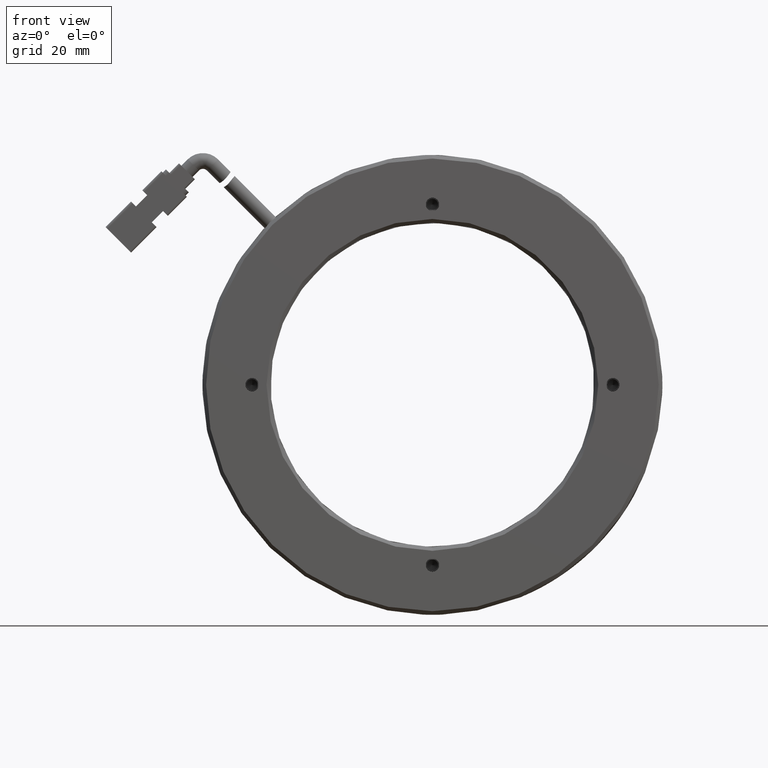
[diagram: clean part render]
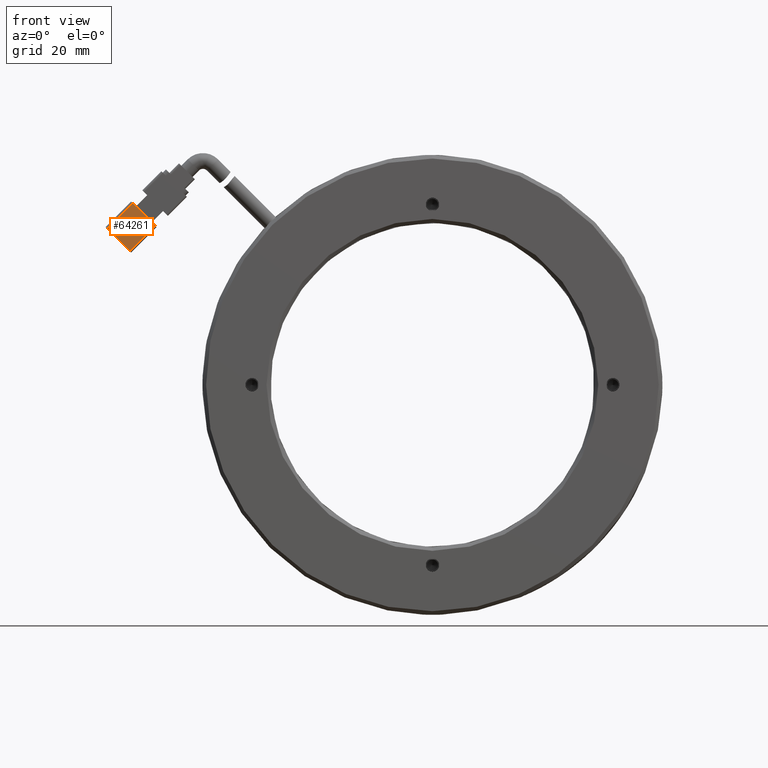
[diagram: same view with one face highlighted and labeled with its STEP entity id]
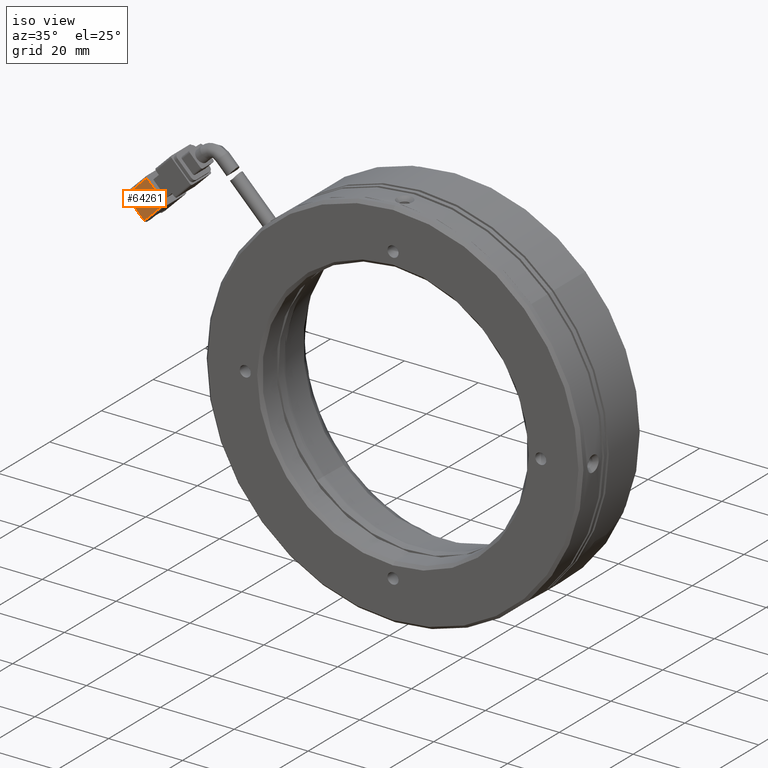
[diagram: same view with one face highlighted and labeled with its STEP entity id]
A machine part, front view. The second image highlights one B-rep face of the part: STEP entity #64261.
A second angle (iso view) of the same face is appended — the face is thin or edge-on in the first view.
In plain terms, the highlighted planar face has unit normal (-0, 1, -0).
Its self-contained STEP definition (entity closure, byte-faithful):
#861 = EDGE_CURVE ( 'NONE', #54072, #3154, #72617, .T. ) ;
#1573 = DIRECTION ( 'NONE',  ( 0.7071067811865460200, 7.519688348343535900E-016, 0.7071067811865490200 ) ) ;
#1887 = VECTOR ( 'NONE', #26234, 1000.000000000000100 ) ;
#3154 = VERTEX_POINT ( 'NONE', #37537 ) ;
#3404 = PLANE ( 'NONE',  #78739 ) ;
#4322 = DIRECTION ( 'NONE',  ( 0.7071067811865490200, 1.237900959485503300E-016, -0.7071067811865460200 ) ) ;
#9509 = VERTEX_POINT ( 'NONE', #66168 ) ;
#11329 = DIRECTION ( 'NONE',  ( -0.7071067811865490200, -1.237900959485503300E-016, 0.7071067811865460200 ) ) ;
#11527 = CARTESIAN_POINT ( 'NONE',  ( -67.17514421272166200, 1.107147174518486700, 29.69848480983488400 ) ) ;
#11685 = EDGE_CURVE ( 'NONE', #3154, #9509, #20666, .T. ) ;
#17822 = ORIENTED_EDGE ( 'NONE', *, *, #861, .F. ) ;
#20666 = LINE ( 'NONE', #59732, #76312 ) ;
#23168 = ORIENTED_EDGE ( 'NONE', *, *, #59454, .F. ) ;
#23171 = EDGE_LOOP ( 'NONE', ( #31412, #17822, #36465, #23168 ) ) ;
#25601 = CARTESIAN_POINT ( 'NONE',  ( -61.51828996322935000, 1.107147174518492600, 35.35533905932726400 ) ) ;
#26234 = DIRECTION ( 'NONE',  ( -0.7071067811865460200, -7.519688348343535900E-016, -0.7071067811865490200 ) ) ;
#31412 = ORIENTED_EDGE ( 'NONE', *, *, #11685, .F. ) ;
#32762 = CARTESIAN_POINT ( 'NONE',  ( -67.17514421272166200, 1.107147174518486700, 29.69848480983488400 ) ) ;
#36465 = ORIENTED_EDGE ( 'NONE', *, *, #81024, .F. ) ;
#37537 = CARTESIAN_POINT ( 'NONE',  ( -72.12489168102752000, 1.107147174518486700, 34.64823227814069600 ) ) ;
#40038 = DIRECTION ( 'NONE',  ( 0.7071067811865460200, 7.519688348343535900E-016, 0.7071067811865490200 ) ) ;
#47915 = CARTESIAN_POINT ( 'NONE',  ( -61.51828996322934300, 1.107147174518492600, 35.35533905932723500 ) ) ;
#50625 = LINE ( 'NONE', #47915, #86903 ) ;
#54072 = VERTEX_POINT ( 'NONE', #79617 ) ;
#59454 = EDGE_CURVE ( 'NONE', #9509, #82620, #50625, .T. ) ;
#59732 = CARTESIAN_POINT ( 'NONE',  ( -72.12489168102750600, 1.107147174518486700, 34.64823227814071100 ) ) ;
#64261 = ADVANCED_FACE ( 'NONE', ( #77373 ), #3404, .F. ) ;
#66168 = CARTESIAN_POINT ( 'NONE',  ( -66.46803743153519400, 1.107147174518492600, 40.30508652763305800 ) ) ;
#72617 = LINE ( 'NONE', #11527, #91971 ) ;
#76312 = VECTOR ( 'NONE', #1573, 1000.000000000000100 ) ;
#76848 = LINE ( 'NONE', #76937, #1887 ) ;
#76937 = CARTESIAN_POINT ( 'NONE',  ( -67.17514421272170500, 1.107147174518486700, 29.69848480983492700 ) ) ;
#77373 = FACE_OUTER_BOUND ( 'NONE', #23171, .T. ) ;
#78739 = AXIS2_PLACEMENT_3D ( 'NONE', #32762, #83412, #40038 ) ;
#79617 = CARTESIAN_POINT ( 'NONE',  ( -67.17514421272167600, 1.107147174518486700, 29.69848480983490500 ) ) ;
#81024 = EDGE_CURVE ( 'NONE', #82620, #54072, #76848, .T. ) ;
#82620 = VERTEX_POINT ( 'NONE', #25601 ) ;
#83412 = DIRECTION ( 'NONE',  ( -6.192550786412707400E-016, 1.000000000000000000, -4.441894460633663800E-016 ) ) ;
#86903 = VECTOR ( 'NONE', #4322, 1000.000000000000100 ) ;
#91971 = VECTOR ( 'NONE', #11329, 1000.000000000000100 ) ;